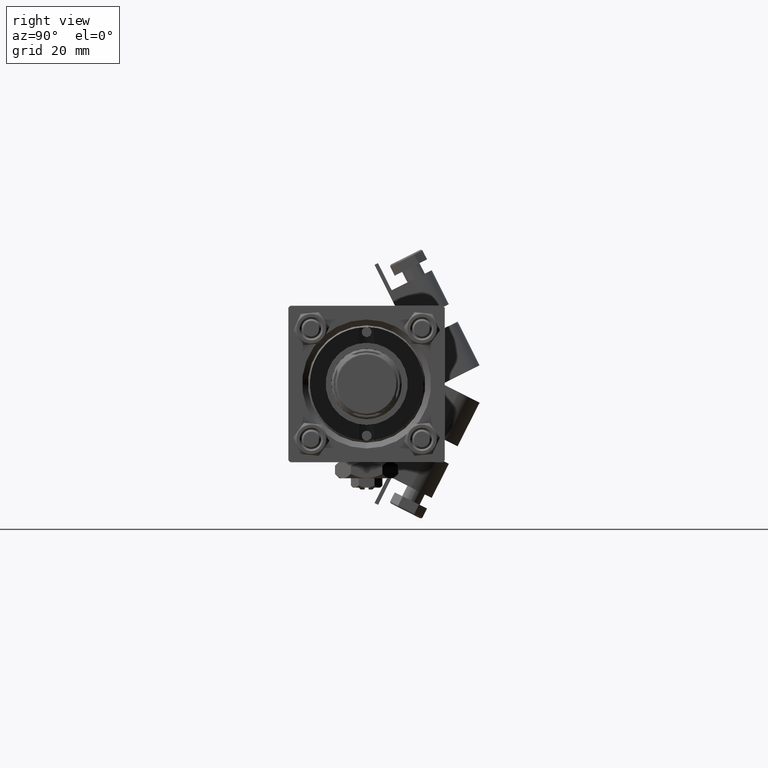
[diagram: clean part render]
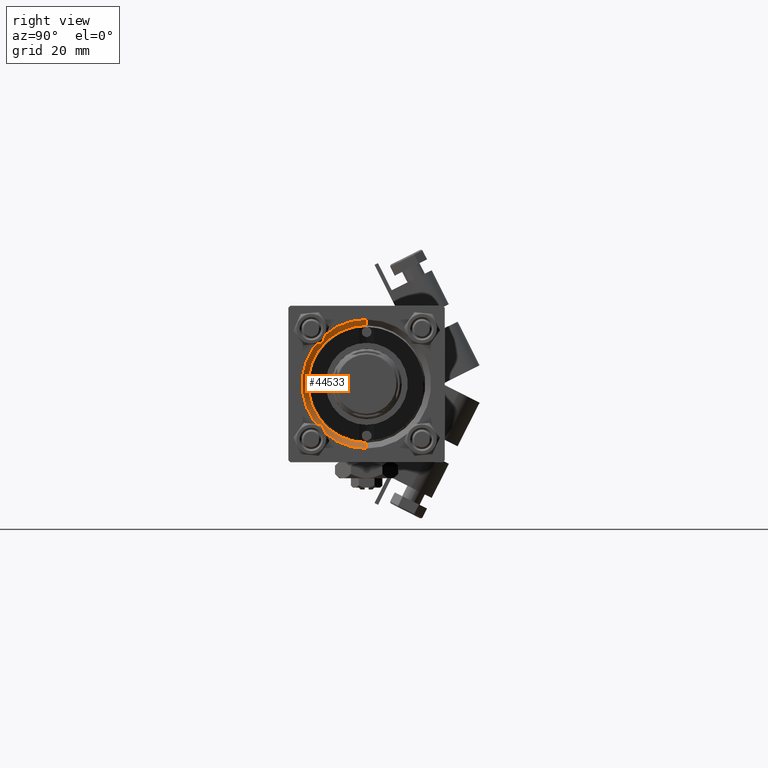
[diagram: same view with one face highlighted and labeled with its STEP entity id]
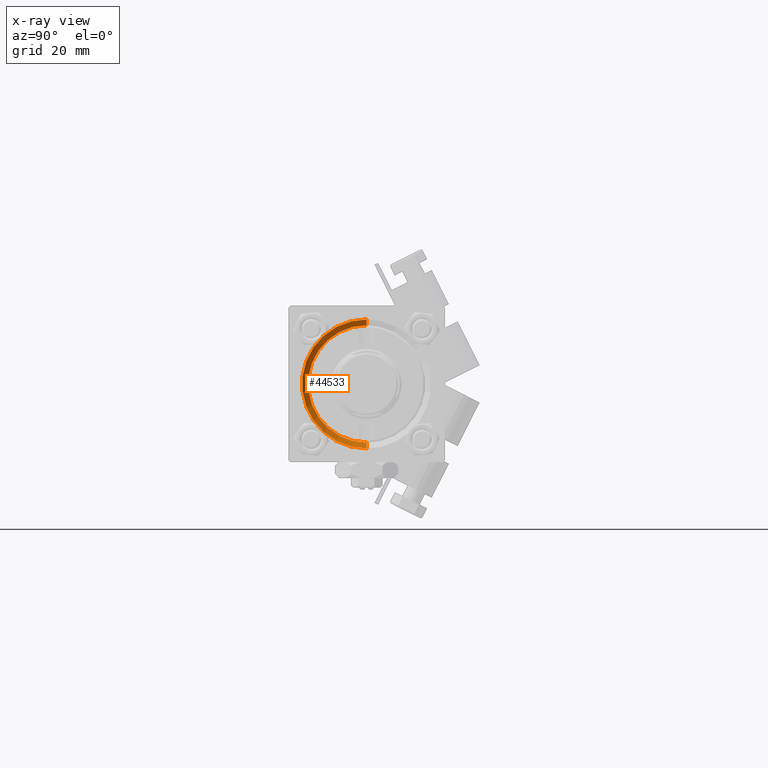
[diagram: x-ray of the same camera — body ghosted, the highlighted face saturated]
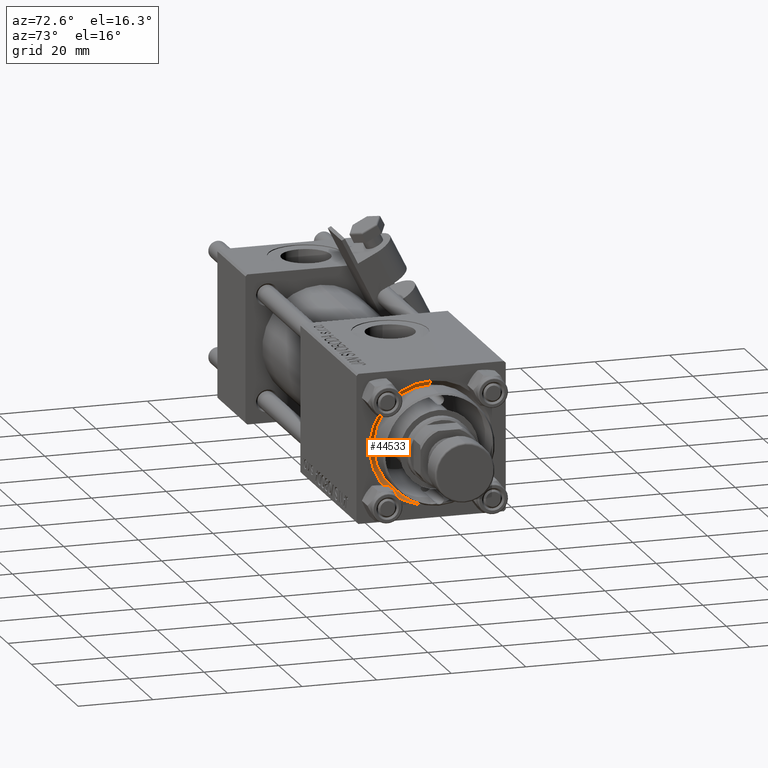
[diagram: same view with one face highlighted and labeled with its STEP entity id]
A machine part, right view. The second image highlights one B-rep face of the part: STEP entity #44533.
The next image is the same camera in x-ray: the body ghosted, the highlighted face saturated — about 0% of this face is hidden behind the body in this view.
A second angle (auxiliary view) of the same face is appended — the face is thin or edge-on in the first view.
In plain terms, the highlighted conical surface has half-angle 45 deg.
Its self-contained STEP definition (entity closure, byte-faithful):
#363 = CARTESIAN_POINT ( 'NONE',  ( 117.5000000000000000, 0.000000000000000000, -15.00000000000000000 ) ) ;
#3111 = CARTESIAN_POINT ( 'NONE',  ( 119.0000000000000142, 2.020667218593134678E-15, 16.50000000000001421 ) ) ;
#4463 = VERTEX_POINT ( 'NONE', #9717 ) ;
#5218 = LINE ( 'NONE', #13555, #26312 ) ;
#9412 = DIRECTION ( 'NONE',  ( 0.000000000000000000, 0.000000000000000000, 1.000000000000000000 ) ) ;
#9717 = CARTESIAN_POINT ( 'NONE',  ( 119.0000000000000142, 0.000000000000000000, -16.50000000000001421 ) ) ;
#9781 = DIRECTION ( 'NONE',  ( 0.7071067811865474617, 0.000000000000000000, -0.7071067811865474617 ) ) ;
#11926 = ORIENTED_EDGE ( 'NONE', *, *, #13562, .T. ) ;
#13555 = CARTESIAN_POINT ( 'NONE',  ( 117.5000000000000000, 0.000000000000000000, -15.00000000000000000 ) ) ;
#13562 = EDGE_CURVE ( 'NONE', #39916, #38637, #50072, .T. ) ;
#13732 = CARTESIAN_POINT ( 'NONE',  ( 117.5000000000000000, 0.000000000000000000, 0.000000000000000000 ) ) ;
#14939 = ORIENTED_EDGE ( 'NONE', *, *, #26261, .F. ) ;
#17119 = AXIS2_PLACEMENT_3D ( 'NONE', #50995, #29808, #46169 ) ;
#18018 = AXIS2_PLACEMENT_3D ( 'NONE', #13732, #22051, #9412 ) ;
#18477 = EDGE_CURVE ( 'NONE', #42088, #4463, #5218, .T. ) ;
#20730 = ORIENTED_EDGE ( 'NONE', *, *, #18477, .F. ) ;
#21681 = CARTESIAN_POINT ( 'NONE',  ( 117.5000000000000000, 1.836970198721029589E-15, 15.00000000000000000 ) ) ;
#22051 = DIRECTION ( 'NONE',  ( 1.000000000000000000, 0.000000000000000000, 0.000000000000000000 ) ) ;
#25399 = CARTESIAN_POINT ( 'NONE',  ( 117.5000000000000000, 1.836970198721029589E-15, 15.00000000000000000 ) ) ;
#26261 = EDGE_CURVE ( 'NONE', #4463, #38637, #40571, .T. ) ;
#26312 = VECTOR ( 'NONE', #9781, 1000.000000000000114 ) ;
#29808 = DIRECTION ( 'NONE',  ( 1.000000000000000000, 0.000000000000000000, 0.000000000000000000 ) ) ;
#32244 = VECTOR ( 'NONE', #33455, 1000.000000000000114 ) ;
#32253 = CARTESIAN_POINT ( 'NONE',  ( 119.0000000000000142, 0.000000000000000000, 0.000000000000000000 ) ) ;
#32888 = AXIS2_PLACEMENT_3D ( 'NONE', #32253, #41080, #52632 ) ;
#33344 = ORIENTED_EDGE ( 'NONE', *, *, #46297, .F. ) ;
#33455 = DIRECTION ( 'NONE',  ( 0.7071067811865474617, 8.659560562354932858E-17, 0.7071067811865474617 ) ) ;
#38637 = VERTEX_POINT ( 'NONE', #3111 ) ;
#39916 = VERTEX_POINT ( 'NONE', #21681 ) ;
#40571 = CIRCLE ( 'NONE', #32888, 16.50000000000001421 ) ;
#41080 = DIRECTION ( 'NONE',  ( -1.000000000000000000, -0.000000000000000000, -0.000000000000000000 ) ) ;
#41134 = CIRCLE ( 'NONE', #18018, 15.00000000000000000 ) ;
#41280 = EDGE_LOOP ( 'NONE', ( #33344, #11926, #14939, #20730 ) ) ;
#42088 = VERTEX_POINT ( 'NONE', #363 ) ;
#44533 = ADVANCED_FACE ( 'NONE', ( #51260 ), #49663, .F. ) ;
#46169 = DIRECTION ( 'NONE',  ( 0.000000000000000000, 0.000000000000000000, -1.000000000000000000 ) ) ;
#46297 = EDGE_CURVE ( 'NONE', #39916, #42088, #41134, .T. ) ;
#49663 = CONICAL_SURFACE ( 'NONE', #17119, 15.00000000000000000, 0.7853981633974482790 ) ;
#50072 = LINE ( 'NONE', #25399, #32244 ) ;
#50995 = CARTESIAN_POINT ( 'NONE',  ( 117.5000000000000000, 0.000000000000000000, 0.000000000000000000 ) ) ;
#51260 = FACE_OUTER_BOUND ( 'NONE', #41280, .T. ) ;
#52632 = DIRECTION ( 'NONE',  ( 0.000000000000000000, 0.000000000000000000, 1.000000000000000000 ) ) ;